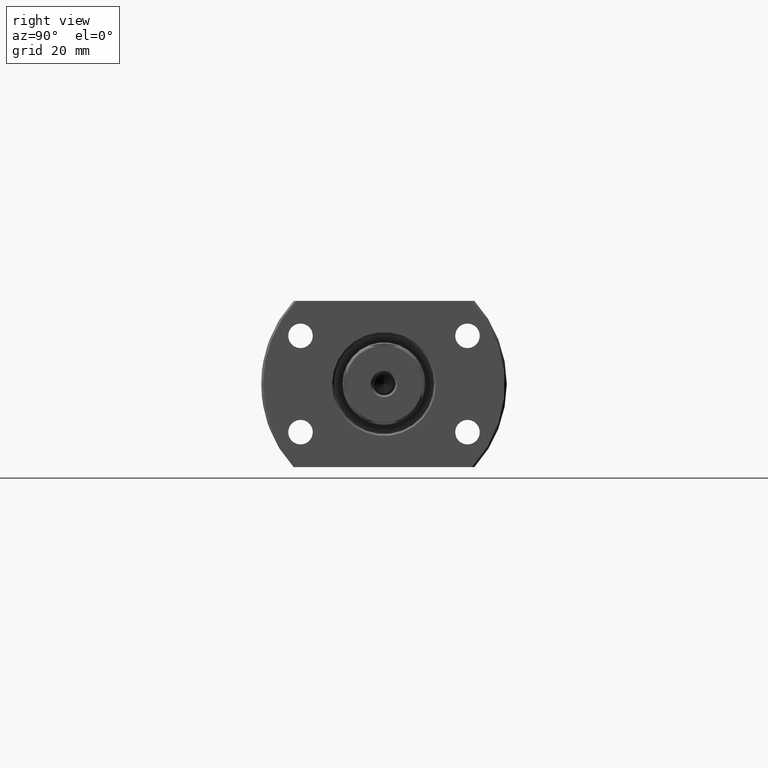
[diagram: clean part render]
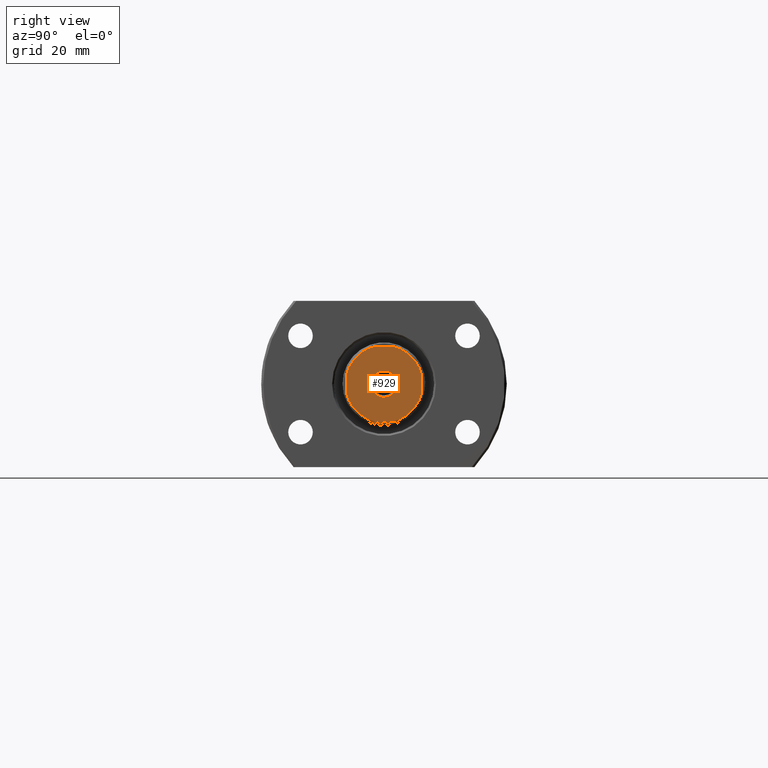
[diagram: same view with one face highlighted and labeled with its STEP entity id]
A machine part, right view. The second image highlights one B-rep face of the part: STEP entity #929.
In plain terms, the highlighted planar face has unit normal (-1, -0, 0).
Its self-contained STEP definition (entity closure, byte-faithful):
#25 = VERTEX_POINT ( 'NONE', #2871 ) ;
#64 = ORIENTED_EDGE ( 'NONE', *, *, #1687, .T. ) ;
#109 = CIRCLE ( 'NONE', #3226, 10.24999999999996447 ) ;
#113 = CARTESIAN_POINT ( 'NONE',  ( 177.0000000000000000, 1.893089910062246429E-15, 0.000000000000000000 ) ) ;
#133 = CARTESIAN_POINT ( 'NONE',  ( 176.9999999999998295, -10.00000000000293277, 2.249999999986791899 ) ) ;
#299 = DIRECTION ( 'NONE',  ( 1.407150508390144951E-14, 1.000000000000000000, 2.198672669359601486E-16 ) ) ;
#335 = ORIENTED_EDGE ( 'NONE', *, *, #3077, .F. ) ;
#390 = CARTESIAN_POINT ( 'NONE',  ( 177.0000000000000000, -10.00000000000293099, -2.249999999986805221 ) ) ;
#401 = DIRECTION ( 'NONE',  ( -1.000000000000000000, -1.069542322069065801E-17, 0.000000000000000000 ) ) ;
#403 = CARTESIAN_POINT ( 'NONE',  ( 177.0000000000000000, -2.933358695101247783E-12, 0.000000000000000000 ) ) ;
#414 = FACE_BOUND ( 'NONE', #1581, .T. ) ;
#416 = DIRECTION ( 'NONE',  ( 0.000000000000000000, -1.000000000000000000, 0.000000000000000000 ) ) ;
#503 = VERTEX_POINT ( 'NONE', #2929 ) ;
#541 = LINE ( 'NONE', #1512, #1261 ) ;
#542 = EDGE_CURVE ( 'NONE', #25, #1768, #2294, .T. ) ;
#553 = DIRECTION ( 'NONE',  ( 0.000000000000000000, -1.000000000000000000, 0.000000000000000000 ) ) ;
#602 = CARTESIAN_POINT ( 'NONE',  ( 177.0000000000001705, 9.999999999997067235, -2.250000000013097523 ) ) ;
#610 = EDGE_CURVE ( 'NONE', #1680, #1878, #541, .T. ) ;
#649 = AXIS2_PLACEMENT_3D ( 'NONE', #1248, #2495, #1986 ) ;
#703 = VERTEX_POINT ( 'NONE', #390 ) ;
#721 = CARTESIAN_POINT ( 'NONE',  ( 177.0000000000000000, -6.148574185495778962E-34, 0.000000000000000000 ) ) ;
#754 = DIRECTION ( 'NONE',  ( 0.000000000000000000, 2.198672669359601486E-16, -1.000000000000000000 ) ) ;
#759 = EDGE_CURVE ( 'NONE', #2684, #503, #2156, .T. ) ;
#929 = ADVANCED_FACE ( 'NONE', ( #414, #943 ), #2609, .F. ) ;
#943 = FACE_OUTER_BOUND ( 'NONE', #2223, .T. ) ;
#948 = ORIENTED_EDGE ( 'NONE', *, *, #610, .F. ) ;
#949 = ORIENTED_EDGE ( 'NONE', *, *, #759, .T. ) ;
#951 = EDGE_CURVE ( 'NONE', #2019, #1878, #1285, .T. ) ;
#1044 = CARTESIAN_POINT ( 'NONE',  ( 177.0000000000001705, 9.999999999997065459, 3.944933459514878837 ) ) ;
#1049 = VECTOR ( 'NONE', #754, 1000.000000000000000 ) ;
#1072 = DIRECTION ( 'NONE',  ( 1.000000000000000000, 1.069542322069065801E-17, 0.000000000000000000 ) ) ;
#1097 = DIRECTION ( 'NONE',  ( 0.000000000000000000, -1.000000000000000000, 0.000000000000000000 ) ) ;
#1207 = EDGE_CURVE ( 'NONE', #1680, #2977, #2007, .T. ) ;
#1248 = CARTESIAN_POINT ( 'NONE',  ( 177.0000000000000000, 1.893089910062246429E-15, 0.000000000000000000 ) ) ;
#1261 = VECTOR ( 'NONE', #299, 1000.000000000000000 ) ;
#1285 = CIRCLE ( 'NONE', #1801, 10.25000000000002309 ) ;
#1325 = CARTESIAN_POINT ( 'NONE',  ( 176.9999999999998295, -10.00000000000293099, -3.944933459514880614 ) ) ;
#1337 = DIRECTION ( 'NONE',  ( -1.407150508390144951E-14, -1.000000000000000000, -4.397345338719202973E-16 ) ) ;
#1339 = CIRCLE ( 'NONE', #2010, 3.500000000000679901 ) ;
#1351 = CARTESIAN_POINT ( 'NONE',  ( 176.9999999999999716, -2.249999999999837907, -10.00000000000000000 ) ) ;
#1374 = DIRECTION ( 'NONE',  ( 1.069542322069065801E-17, -1.000000000000000000, 0.000000000000000000 ) ) ;
#1376 = DIRECTION ( 'NONE',  ( -1.000000000000000000, -1.069542322069065801E-17, -0.000000000000000000 ) ) ;
#1431 = AXIS2_PLACEMENT_3D ( 'NONE', #403, #1376, #416 ) ;
#1512 = CARTESIAN_POINT ( 'NONE',  ( 176.9999999999999432, -3.944933459517812047, 9.999999999999998224 ) ) ;
#1581 = EDGE_LOOP ( 'NONE', ( #949, #64 ) ) ;
#1680 = VERTEX_POINT ( 'NONE', #2036 ) ;
#1682 = EDGE_CURVE ( 'NONE', #25, #2380, #3028, .T. ) ;
#1685 = CARTESIAN_POINT ( 'NONE',  ( 177.0000000000000000, 9.999999999997065459, 2.250000000013158807 ) ) ;
#1687 = EDGE_CURVE ( 'NONE', #503, #2684, #1339, .T. ) ;
#1689 = DIRECTION ( 'NONE',  ( 1.000000000000000000, 1.069542322069065801E-17, 0.000000000000000000 ) ) ;
#1745 = EDGE_CURVE ( 'NONE', #703, #2977, #2815, .T. ) ;
#1768 = VERTEX_POINT ( 'NONE', #602 ) ;
#1777 = CARTESIAN_POINT ( 'NONE',  ( 177.0000000000000000, -2.933358695101247783E-12, 0.000000000000000000 ) ) ;
#1782 = LINE ( 'NONE', #1044, #1049 ) ;
#1795 = ORIENTED_EDGE ( 'NONE', *, *, #542, .T. ) ;
#1801 = AXIS2_PLACEMENT_3D ( 'NONE', #2931, #2901, #2413 ) ;
#1878 = VERTEX_POINT ( 'NONE', #2894 ) ;
#1943 = ORIENTED_EDGE ( 'NONE', *, *, #1682, .F. ) ;
#1986 = DIRECTION ( 'NONE',  ( 0.000000000000000000, -1.000000000000000000, 0.000000000000000000 ) ) ;
#2007 = CIRCLE ( 'NONE', #3213, 10.24999999999996447 ) ;
#2010 = AXIS2_PLACEMENT_3D ( 'NONE', #1777, #3045, #553 ) ;
#2013 = VECTOR ( 'NONE', #2830, 1000.000000000000000 ) ;
#2019 = VERTEX_POINT ( 'NONE', #1685 ) ;
#2036 = CARTESIAN_POINT ( 'NONE',  ( 176.9999999999999716, -2.249999999999836131, 10.00000000000000000 ) ) ;
#2084 = CARTESIAN_POINT ( 'NONE',  ( 177.0000000000000568, 3.944933459511946072, -9.999999999999996447 ) ) ;
#2156 = CIRCLE ( 'NONE', #1431, 3.500000000000679901 ) ;
#2223 = EDGE_LOOP ( 'NONE', ( #1943, #1795, #335, #2932, #948, #2654, #2741, #2569 ) ) ;
#2294 = CIRCLE ( 'NONE', #649, 10.25000000000001066 ) ;
#2380 = VERTEX_POINT ( 'NONE', #1351 ) ;
#2413 = DIRECTION ( 'NONE',  ( 0.000000000000000000, -1.000000000000000000, 1.776356839400250465E-15 ) ) ;
#2495 = DIRECTION ( 'NONE',  ( 1.000000000000000000, 1.069542322069065801E-17, 0.000000000000000000 ) ) ;
#2559 = DIRECTION ( 'NONE',  ( 0.000000000000000000, -1.000000000000000000, -8.881784197001252323E-16 ) ) ;
#2565 = CARTESIAN_POINT ( 'NONE',  ( 177.0000000000000000, 3.499999999997740918, 0.000000000000000000 ) ) ;
#2569 = ORIENTED_EDGE ( 'NONE', *, *, #2920, .T. ) ;
#2583 = VECTOR ( 'NONE', #1337, 1000.000000000000000 ) ;
#2609 = PLANE ( 'NONE',  #3154 ) ;
#2654 = ORIENTED_EDGE ( 'NONE', *, *, #1207, .T. ) ;
#2684 = VERTEX_POINT ( 'NONE', #2565 ) ;
#2741 = ORIENTED_EDGE ( 'NONE', *, *, #1745, .F. ) ;
#2815 = LINE ( 'NONE', #1325, #2013 ) ;
#2830 = DIRECTION ( 'NONE',  ( 0.000000000000000000, -6.596018008078805199E-16, 1.000000000000000000 ) ) ;
#2838 = CARTESIAN_POINT ( 'NONE',  ( 177.0000000000000000, 1.893089910062246429E-15, 0.000000000000000000 ) ) ;
#2871 = CARTESIAN_POINT ( 'NONE',  ( 177.0000000000000284, 2.250000000000062172, -9.999999999999996447 ) ) ;
#2894 = CARTESIAN_POINT ( 'NONE',  ( 177.0000000000000284, 2.250000000000112355, 10.00000000000000000 ) ) ;
#2901 = DIRECTION ( 'NONE',  ( 1.000000000000000000, 1.069542322069065801E-17, 0.000000000000000000 ) ) ;
#2920 = EDGE_CURVE ( 'NONE', #703, #2380, #109, .T. ) ;
#2929 = CARTESIAN_POINT ( 'NONE',  ( 177.0000000000000000, -3.500000000003735234, 4.286263797016718727E-16 ) ) ;
#2931 = CARTESIAN_POINT ( 'NONE',  ( 177.0000000000000000, 1.893089910062246429E-15, 0.000000000000000000 ) ) ;
#2932 = ORIENTED_EDGE ( 'NONE', *, *, #951, .T. ) ;
#2977 = VERTEX_POINT ( 'NONE', #133 ) ;
#3028 = LINE ( 'NONE', #2084, #2583 ) ;
#3045 = DIRECTION ( 'NONE',  ( -1.000000000000000000, -1.069542322069065801E-17, -0.000000000000000000 ) ) ;
#3077 = EDGE_CURVE ( 'NONE', #2019, #1768, #1782, .T. ) ;
#3154 = AXIS2_PLACEMENT_3D ( 'NONE', #721, #401, #1374 ) ;
#3213 = AXIS2_PLACEMENT_3D ( 'NONE', #113, #1072, #2559 ) ;
#3226 = AXIS2_PLACEMENT_3D ( 'NONE', #2838, #1689, #1097 ) ;